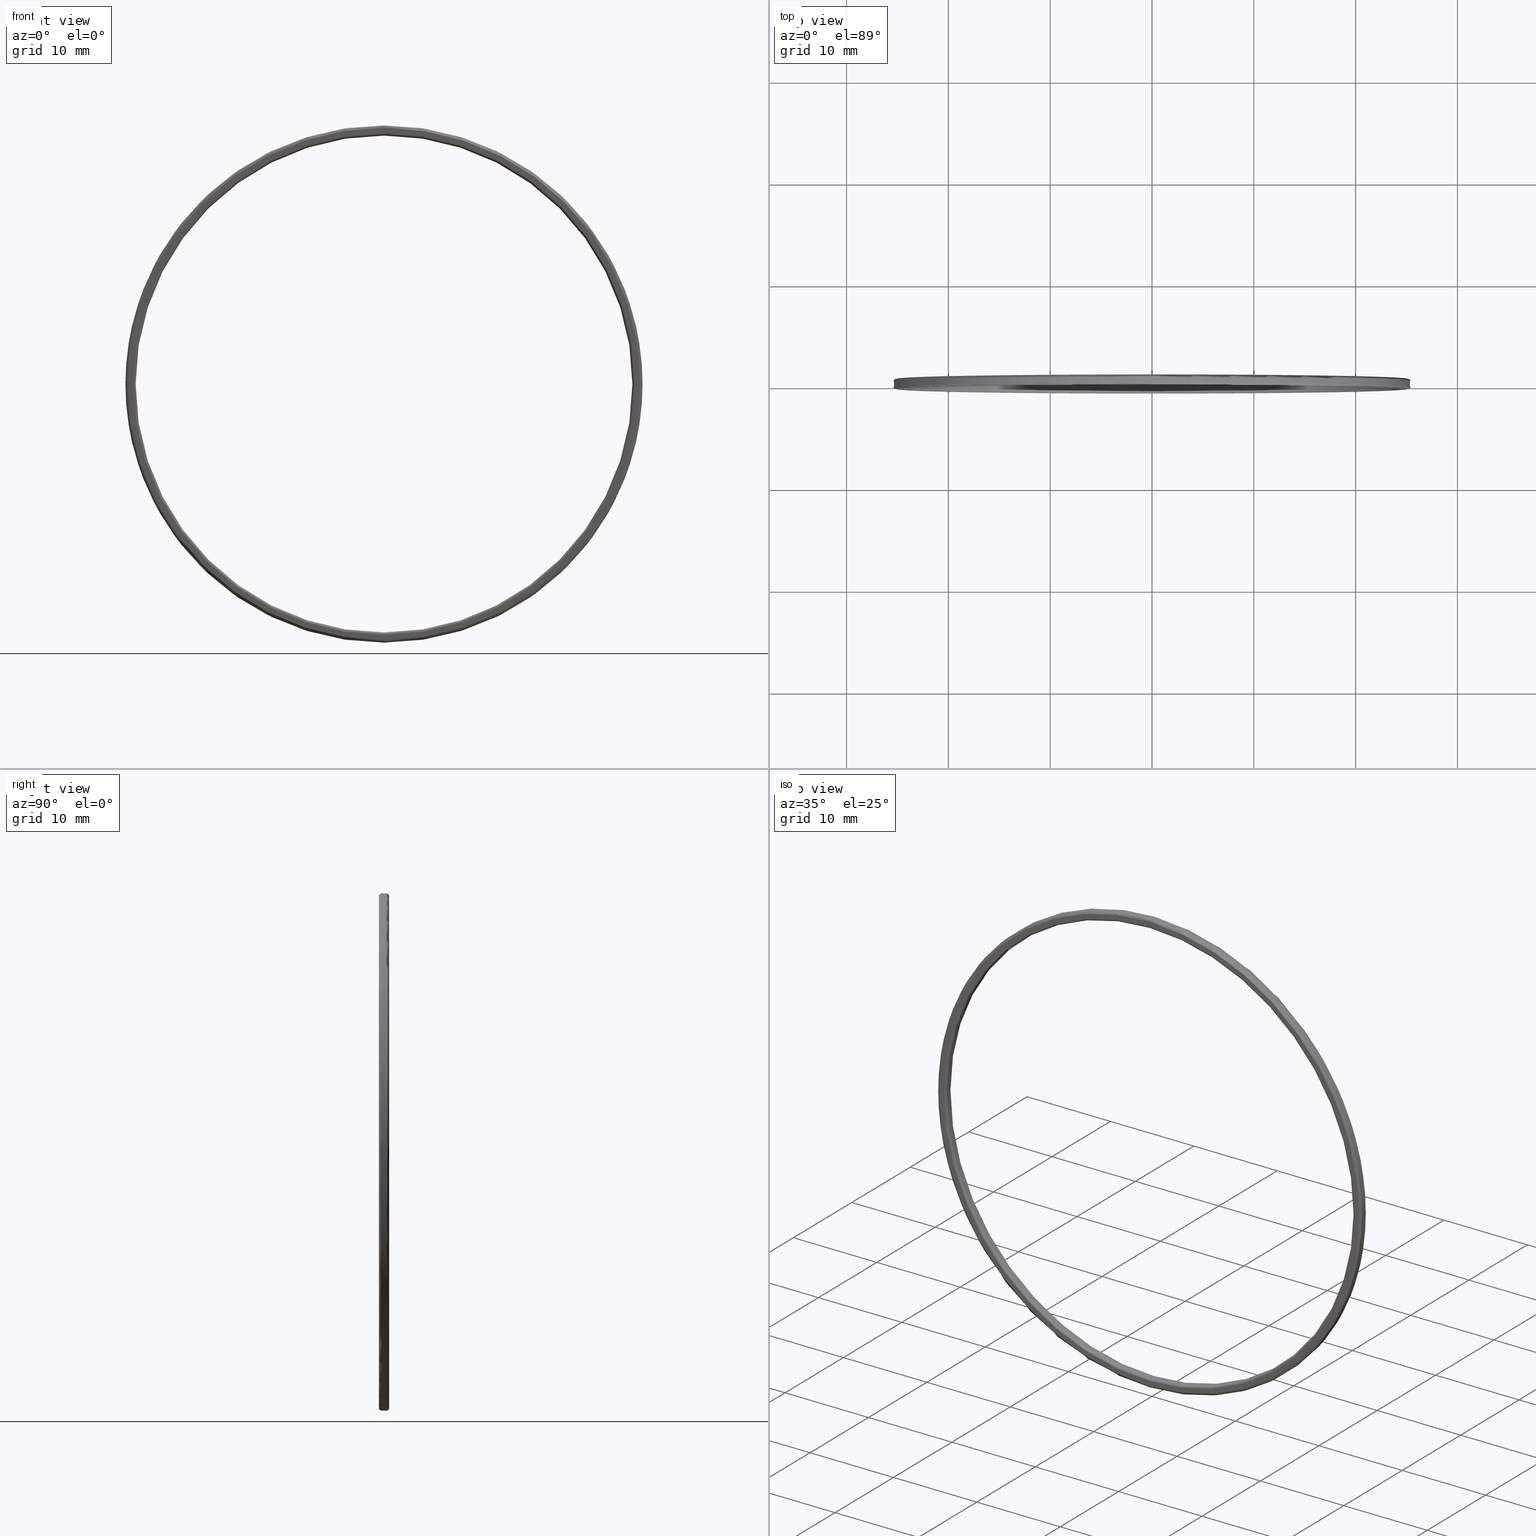
[diagram: canonical four-view strip — front | top / right | iso, engineering-drawing reading convention]
A machine part, canonical four-view strip (front | top / right | iso — engineering-drawing reading convention). The complete STEP part file that produces these views, byte-faithful:
ISO-10303-21;
HEADER;
FILE_DESCRIPTION (( 'STEP AP203' ),
    '1' );
FILE_NAME ('1.8.5.25_ZFK-D2.0_2.0Ӣ���ط�����Ȧ.STEP',
    '2021-07-10T05:48:40',
    ( 'China' ),
    ( 'Home' ),
    'SwSTEP 2.0',
    'SolidWorks 2018',
    '' );
FILE_SCHEMA (( 'CONFIG_CONTROL_DESIGN' ));
ENDSEC;

DATA;
#1 = ORIENTED_EDGE ( 'NONE', *, *, #332, .F. ) ;
#2 = ORIENTED_EDGE ( 'NONE', *, *, #5, .T. ) ;
#3 = CARTESIAN_POINT ( 'NONE',  ( 0.0000000000000000000, 0.4999999999999978351, 0.0000000000000000000 ) ) ;
#4 = APPROVAL_ROLE ( '' ) ;
#5 = EDGE_CURVE ( 'NONE', #395, #457, #37, .T. ) ;
#6 = FACE_OUTER_BOUND ( 'NONE', #145, .T. ) ;
#7 = PERSON_AND_ORGANIZATION ( #227, #315 ) ;
#8 = EDGE_CURVE ( 'NONE', #77, #326, #95, .T. ) ;
#9 = CARTESIAN_POINT ( 'NONE',  ( 0.0000000000000000000, 4.847222222222231203, 0.0000000000000000000 ) ) ;
#10 = CARTESIAN_POINT ( 'NONE',  ( 3.018754359898225504E-15, -0.2500000000000019429, -24.64999999999999858 ) ) ;
#11 = ADVANCED_FACE ( 'NONE', ( #135, #398 ), #322, .F. ) ;
#12 = VERTEX_POINT ( 'NONE', #290 ) ;
#13 = DIRECTION ( 'NONE',  ( 0.0000000000000000000, -1.000000000000000000, 0.0000000000000000000 ) ) ;
#14 = DIRECTION ( 'NONE',  ( 0.0000000000000000000, 0.0000000000000000000, 1.000000000000000000 ) ) ;
#15 = CARTESIAN_POINT ( 'NONE',  ( 0.0000000000000000000, -0.2500000000000019429, 0.0000000000000000000 ) ) ;
#16 = EDGE_CURVE ( 'NONE', #77, #60, #114, .T. ) ;
#17 = PLANE ( 'NONE',  #72 ) ;
#18 = CARTESIAN_POINT ( 'NONE',  ( 0.0000000000000000000, -0.5000000000000022204, 0.0000000000000000000 ) ) ;
#19 = CARTESIAN_POINT ( 'NONE',  ( 0.0000000000000000000, 0.0000000000000000000, 0.0000000000000000000 ) ) ;
#20 = CIRCLE ( 'NONE', #240, 25.14999999999999858 ) ;
#21 = CIRCLE ( 'NONE', #74, 0.2500000000000002220 ) ;
#22 = DIRECTION ( 'NONE',  ( 0.0000000000000000000, -1.000000000000000000, 0.0000000000000000000 ) ) ;
#23 = LINE ( 'NONE', #61, #344 ) ;
#24 = EDGE_CURVE ( 'NONE', #415, #122, #406, .T. ) ;
#25 = CARTESIAN_POINT ( 'NONE',  ( 0.0000000000000000000, 4.847222222222231203, 0.0000000000000000000 ) ) ;
#26 = DIRECTION ( 'NONE',  ( 0.0000000000000000000, 0.0000000000000000000, 1.000000000000000000 ) ) ;
#27 = FACE_OUTER_BOUND ( 'NONE', #272, .T. ) ;
#28 = AXIS2_PLACEMENT_3D ( 'NONE', #198, #307, #384 ) ;
#29 = CARTESIAN_POINT ( 'NONE',  ( 0.0000000000000000000, -0.2500000000000019429, 0.0000000000000000000 ) ) ;
#30 = EDGE_LOOP ( 'NONE', ( #405, #73 ) ) ;
#31 = EDGE_CURVE ( 'NONE', #124, #78, #305, .T. ) ;
#32 = CARTESIAN_POINT ( 'NONE',  ( 3.018754359898225504E-15, 0.4999999999999977240, 24.64999999999999858 ) ) ;
#33 = COORDINATED_UNIVERSAL_TIME_OFFSET ( 8, 0, .AHEAD. ) ;
#34 = EDGE_CURVE ( 'NONE', #457, #415, #23, .T. ) ;
#35 = TOROIDAL_SURFACE ( 'NONE', #192, 25.14999999999999858, 0.2500000000000000000 ) ;
#36 = CIRCLE ( 'NONE', #397, 25.14999999999999858 ) ;
#37 = CIRCLE ( 'NONE', #370, 24.39999999999999858 ) ;
#38 = DIRECTION ( 'NONE',  ( 1.000000000000000000, 0.0000000000000000000, 1.224646799147353207E-16 ) ) ;
#39 = DIRECTION ( 'NONE',  ( -0.0000000000000000000, 1.000000000000000000, -0.0000000000000000000 ) ) ;
#40 = EDGE_CURVE ( 'NONE', #435, #252, #283, .T. ) ;
#41 = APPROVAL_PERSON_ORGANIZATION ( #336, #67, #210 ) ;
#42 = CYLINDRICAL_SURFACE ( 'NONE', #28, 24.39999999999999858 ) ;
#43 = DIRECTION ( 'NONE',  ( 0.0000000000000000000, 0.0000000000000000000, 1.000000000000000000 ) ) ;
#44 = ORIENTED_EDGE ( 'NONE', *, *, #5, .F. ) ;
#45 = ORIENTED_EDGE ( 'NONE', *, *, #84, .F. ) ;
#46 = AXIS2_PLACEMENT_3D ( 'NONE', #357, #120, #413 ) ;
#47 = PERSON_AND_ORGANIZATION ( #227, #315 ) ;
#48 = CARTESIAN_POINT ( 'NONE',  ( 24.39999999999999858, -0.5000000000000022204, 0.0000000000000000000 ) ) ;
#49 = DIRECTION ( 'NONE',  ( -0.0000000000000000000, 1.000000000000000000, -0.0000000000000000000 ) ) ;
#50 = ORIENTED_EDGE ( 'NONE', *, *, #286, .F. ) ;
#51 = CARTESIAN_POINT ( 'NONE',  ( 0.0000000000000000000, -0.2500000000000019429, 0.0000000000000000000 ) ) ;
#52 = ORIENTED_EDGE ( 'NONE', *, *, #16, .F. ) ;
#53 = APPROVAL_DATE_TIME ( #190, #244 ) ;
#54 =( GEOMETRIC_REPRESENTATION_CONTEXT ( 3 ) GLOBAL_UNCERTAINTY_ASSIGNED_CONTEXT ( ( #71 ) ) GLOBAL_UNIT_ASSIGNED_CONTEXT ( ( #448, #317, #165 ) ) REPRESENTATION_CONTEXT ( 'NONE', 'WORKASPACE' ) );
#55 = CARTESIAN_POINT ( 'NONE',  ( 2.988138189919541717E-15, -0.2500000000000019429, -24.39999999999999858 ) ) ;
#56 = LOCAL_TIME ( 13, 48, 40.00000000000000000, #76 ) ;
#57 = DIRECTION ( 'NONE',  ( 0.0000000000000000000, 0.0000000000000000000, 1.000000000000000000 ) ) ;
#58 = EDGE_CURVE ( 'NONE', #124, #142, #36, .T. ) ;
#59 = DIRECTION ( 'NONE',  ( 0.0000000000000000000, 0.0000000000000000000, 1.000000000000000000 ) ) ;
#60 = VERTEX_POINT ( 'NONE', #215 ) ;
#61 = CARTESIAN_POINT ( 'NONE',  ( 0.0000000000000000000, 4.847222222222231203, 24.39999999999999858 ) ) ;
#62 = SECURITY_CLASSIFICATION_LEVEL ( 'unclassified' ) ;
#63 = DIRECTION ( 'NONE',  ( 0.0000000000000000000, -1.000000000000000000, 0.0000000000000000000 ) ) ;
#64 = CARTESIAN_POINT ( 'NONE',  ( 3.110602869834276865E-15, 4.847222222222231203, -25.39999999999999858 ) ) ;
#65 = ORIENTED_EDGE ( 'NONE', *, *, #31, .T. ) ;
#66 = CIRCLE ( 'NONE', #128, 25.39999999999999858 ) ;
#67 = APPROVAL ( #175, 'δָ��' ) ;
#68 = ORIENTED_EDGE ( 'NONE', *, *, #58, .F. ) ;
#69 = ORIENTED_EDGE ( 'NONE', *, *, #339, .F. ) ;
#70 = PERSON_AND_ORGANIZATION ( #227, #315 ) ;
#71 = UNCERTAINTY_MEASURE_WITH_UNIT (LENGTH_MEASURE( 1.000000000000000082E-05 ), #448, 'distance_accuracy_value', 'NONE');
#72 = AXIS2_PLACEMENT_3D ( 'NONE', #48, #277, #416 ) ;
#73 = ORIENTED_EDGE ( 'NONE', *, *, #157, .T. ) ;
#74 = AXIS2_PLACEMENT_3D ( 'NONE', #10, #38, #188 ) ;
#75 = CIRCLE ( 'NONE', #268, 24.39999999999999858 ) ;
#76 = COORDINATED_UNIVERSAL_TIME_OFFSET ( 8, 0, .AHEAD. ) ;
#77 = VERTEX_POINT ( 'NONE', #325 ) ;
#78 = VERTEX_POINT ( 'NONE', #256 ) ;
#79 = CC_DESIGN_APPROVAL ( #67, ( #131 ) ) ;
#80 = APPROVAL_PERSON_ORGANIZATION ( #7, #153, #245 ) ;
#81 = DIRECTION ( 'NONE',  ( -0.0000000000000000000, 1.000000000000000000, -0.0000000000000000000 ) ) ;
#82 = ORIENTED_EDGE ( 'NONE', *, *, #117, .F. ) ;
#83 = CARTESIAN_POINT ( 'NONE',  ( 0.0000000000000000000, -0.5000000000000022204, 25.14999999999999858 ) ) ;
#84 = EDGE_CURVE ( 'NONE', #435, #77, #276, .T. ) ;
#85 = DATE_AND_TIME ( #182, #402 ) ;
#86 = CARTESIAN_POINT ( 'NONE',  ( 2.988138189919541717E-15, 4.847222222222231203, -24.39999999999999858 ) ) ;
#87 = ORIENTED_EDGE ( 'NONE', *, *, #301, .F. ) ;
#88 = DIRECTION ( 'NONE',  ( 0.0000000000000000000, 0.0000000000000000000, 1.000000000000000000 ) ) ;
#89 = ORIENTED_EDGE ( 'NONE', *, *, #233, .F. ) ;
#90 = PERSON_AND_ORGANIZATION ( #227, #315 ) ;
#91 = DIRECTION ( 'NONE',  ( 0.0000000000000000000, -1.000000000000000000, 0.0000000000000000000 ) ) ;
#92 = DIRECTION ( 'NONE',  ( 1.000000000000000000, 0.0000000000000000000, 0.0000000000000000000 ) ) ;
#93 = AXIS2_PLACEMENT_3D ( 'NONE', #316, #390, #207 ) ;
#94 = FACE_OUTER_BOUND ( 'NONE', #118, .T. ) ;
#95 = LINE ( 'NONE', #64, #257 ) ;
#96 = DIRECTION ( 'NONE',  ( 0.0000000000000000000, 0.0000000000000000000, -1.000000000000000000 ) ) ;
#97 = CARTESIAN_POINT ( 'NONE',  ( 3.095294784844934972E-15, -0.5000000000000022204, -25.14999999999999858 ) ) ;
#98 = ORIENTED_EDGE ( 'NONE', *, *, #184, .T. ) ;
#99 = DIRECTION ( 'NONE',  ( -0.0000000000000000000, 1.000000000000000000, -0.0000000000000000000 ) ) ;
#100 = CALENDAR_DATE ( 2021, 10, 7 ) ;
#101 = AXIS2_PLACEMENT_3D ( 'NONE', #176, #107, #287 ) ;
#102 = DIRECTION ( 'NONE',  ( 0.0000000000000000000, -0.0000000000000000000, -1.000000000000000000 ) ) ;
#103 = EDGE_LOOP ( 'NONE', ( #45, #89, #221, #52 ) ) ;
#104 = DIRECTION ( 'NONE',  ( -1.224646799147349509E-16, 0.0000000000000000000, -1.000000000000000000 ) ) ;
#105 = ORIENTED_EDGE ( 'NONE', *, *, #34, .F. ) ;
#106 = ORIENTED_EDGE ( 'NONE', *, *, #258, .F. ) ;
#107 = DIRECTION ( 'NONE',  ( 1.000000000000000000, 0.0000000000000000000, -1.224646799147353207E-16 ) ) ;
#108 = PERSON_AND_ORGANIZATION_ROLE ( 'design_supplier' ) ;
#109 = TOROIDAL_SURFACE ( 'NONE', #200, 25.14999999999999858, 0.2500000000000000000 ) ;
#110 = CC_DESIGN_PERSON_AND_ORGANIZATION_ASSIGNMENT ( #239, #108, ( #169 ) ) ;
#111 = PERSON_AND_ORGANIZATION ( #227, #315 ) ;
#112 = AXIS2_PLACEMENT_3D ( 'NONE', #140, #63, #102 ) ;
#113 = CIRCLE ( 'NONE', #93, 24.39999999999999858 ) ;
#114 = CIRCLE ( 'NONE', #279, 25.39999999999999858 ) ;
#115 = ORIENTED_EDGE ( 'NONE', *, *, #58, .T. ) ;
#116 = DIRECTION ( 'NONE',  ( 0.0000000000000000000, 0.0000000000000000000, -1.000000000000000000 ) ) ;
#117 = EDGE_CURVE ( 'NONE', #122, #12, #359, .T. ) ;
#118 = EDGE_LOOP ( 'NONE', ( #425, #436, #347, #105 ) ) ;
#119 = APPROVAL_DATE_TIME ( #85, #67 ) ;
#120 = DIRECTION ( 'NONE',  ( 0.0000000000000000000, -1.000000000000000000, 0.0000000000000000000 ) ) ;
#121 = DIRECTION ( 'NONE',  ( 0.0000000000000000000, -1.000000000000000000, 0.0000000000000000000 ) ) ;
#122 = VERTEX_POINT ( 'NONE', #32 ) ;
#123 = AXIS2_PLACEMENT_3D ( 'NONE', #446, #235, #162 ) ;
#124 = VERTEX_POINT ( 'NONE', #254 ) ;
#125 = DIRECTION ( 'NONE',  ( 0.0000000000000000000, -1.000000000000000000, 0.0000000000000000000 ) ) ;
#126 = ORIENTED_EDGE ( 'NONE', *, *, #34, .T. ) ;
#127 = DIRECTION ( 'NONE',  ( -0.0000000000000000000, 1.000000000000000000, -0.0000000000000000000 ) ) ;
#128 = AXIS2_PLACEMENT_3D ( 'NONE', #432, #267, #342 ) ;
#129 = TOROIDAL_SURFACE ( 'NONE', #320, 24.64999999999999858, 0.2500000000000000000 ) ;
#130 = CARTESIAN_POINT ( 'NONE',  ( 0.0000000000000000000, 0.4999999999999978351, 0.0000000000000000000 ) ) ;
#131 = PRODUCT_DEFINITION ( 'δ֪', '', #169, #183 ) ;
#132 = DIRECTION ( 'NONE',  ( 0.0000000000000000000, -1.000000000000000000, 0.0000000000000000000 ) ) ;
#133 = AXIS2_PLACEMENT_3D ( 'NONE', #409, #193, #116 ) ;
#134 = CIRCLE ( 'NONE', #225, 25.39999999999999858 ) ;
#135 = FACE_BOUND ( 'NONE', #366, .T. ) ;
#136 = CARTESIAN_POINT ( 'NONE',  ( 0.0000000000000000000, 0.2499999999999976130, 0.0000000000000000000 ) ) ;
#137 = EDGE_CURVE ( 'NONE', #60, #77, #66, .T. ) ;
#138 = CARTESIAN_POINT ( 'NONE',  ( 0.0000000000000000000, -0.5000000000000022204, 0.0000000000000000000 ) ) ;
#139 = ORIENTED_EDGE ( 'NONE', *, *, #143, .T. ) ;
#140 = CARTESIAN_POINT ( 'NONE',  ( 24.39999999999999858, 0.4999999999999978351, 0.0000000000000000000 ) ) ;
#141 = PERSON_AND_ORGANIZATION_ROLE ( 'classification_officer' ) ;
#142 = VERTEX_POINT ( 'NONE', #251 ) ;
#143 = EDGE_CURVE ( 'NONE', #78, #326, #299, .T. ) ;
#144 = LOCAL_TIME ( 13, 48, 40.00000000000000000, #280 ) ;
#145 = EDGE_LOOP ( 'NONE', ( #345, #399, #389, #152 ) ) ;
#146 = AXIS2_PLACEMENT_3D ( 'NONE', #130, #49, #96 ) ;
#147 = ADVANCED_FACE ( 'NONE', ( #174 ), #375, .T. ) ;
#148 = VECTOR ( 'NONE', #383, 1000.000000000000000 ) ;
#149 = CARTESIAN_POINT ( 'NONE',  ( 0.0000000000000000000, -0.5000000000000022204, 0.0000000000000000000 ) ) ;
#150 = VECTOR ( 'NONE', #260, 1000.000000000000000 ) ;
#151 = AXIS2_PLACEMENT_3D ( 'NONE', #155, #160, #312 ) ;
#152 = ORIENTED_EDGE ( 'NONE', *, *, #171, .F. ) ;
#153 = APPROVAL ( #212, 'δָ��' ) ;
#154 = APPROVAL_DATE_TIME ( #353, #153 ) ;
#155 = CARTESIAN_POINT ( 'NONE',  ( 0.0000000000000000000, 4.847222222222231203, 0.0000000000000000000 ) ) ;
#156 = AXIS2_PLACEMENT_3D ( 'NONE', #149, #39, #382 ) ;
#157 = EDGE_CURVE ( 'NONE', #430, #378, #330, .T. ) ;
#158 = ADVANCED_FACE ( 'NONE', ( #195 ), #129, .T. ) ;
#159 = DIRECTION ( 'NONE',  ( 0.0000000000000000000, 0.0000000000000000000, 1.000000000000000000 ) ) ;
#160 = DIRECTION ( 'NONE',  ( -0.0000000000000000000, 1.000000000000000000, -0.0000000000000000000 ) ) ;
#161 = TOROIDAL_SURFACE ( 'NONE', #376, 25.14999999999999858, 0.2500000000000000000 ) ;
#162 = DIRECTION ( 'NONE',  ( 0.0000000000000000000, 0.0000000000000000000, 1.000000000000000000 ) ) ;
#163 = EDGE_LOOP ( 'NONE', ( #433, #2, #126, #314 ) ) ;
#164 = APPROVAL_PERSON_ORGANIZATION ( #47, #244, #4 ) ;
#165 =( NAMED_UNIT ( * ) SI_UNIT ( $, .STERADIAN. ) SOLID_ANGLE_UNIT ( ) );
#166 = AXIS2_PLACEMENT_3D ( 'NONE', #321, #202, #281 ) ;
#167 = DIRECTION ( 'NONE',  ( 0.0000000000000000000, 0.0000000000000000000, -1.000000000000000000 ) ) ;
#168 = CARTESIAN_POINT ( 'NONE',  ( 0.0000000000000000000, -0.5000000000000021094, 24.64999999999999858 ) ) ;
#169 = PRODUCT_DEFINITION_FORMATION_WITH_SPECIFIED_SOURCE ( '�κ�', '', #354, .NOT_KNOWN. ) ;
#170 = CALENDAR_DATE ( 2021, 10, 7 ) ;
#171 = EDGE_CURVE ( 'NONE', #60, #78, #364, .T. ) ;
#172 = DIRECTION ( 'NONE',  ( 0.0000000000000000000, -1.000000000000000000, 0.0000000000000000000 ) ) ;
#173 = CIRCLE ( 'NONE', #351, 0.2500000000000002220 ) ;
#174 = FACE_OUTER_BOUND ( 'NONE', #246, .T. ) ;
#175 = APPROVAL_STATUS ( 'not_yet_approved' ) ;
#176 = CARTESIAN_POINT ( 'NONE',  ( 3.018754359898225504E-15, 0.2499999999999976130, 24.64999999999999858 ) ) ;
#177 = CARTESIAN_POINT ( 'NONE',  ( 0.0000000000000000000, 0.4999999999999978351, 0.0000000000000000000 ) ) ;
#178 = CC_DESIGN_APPROVAL ( #153, ( #337 ) ) ;
#179 = ORIENTED_EDGE ( 'NONE', *, *, #40, .T. ) ;
#180 = AXIS2_PLACEMENT_3D ( 'NONE', #229, #270, #43 ) ;
#181 = LOCAL_TIME ( 13, 48, 40.00000000000000000, #450 ) ;
#182 = CALENDAR_DATE ( 2021, 10, 7 ) ;
#183 = DESIGN_CONTEXT ( 'detailed design', #423, 'design' ) ;
#184 = EDGE_CURVE ( 'NONE', #395, #430, #21, .T. ) ;
#185 = DIRECTION ( 'NONE',  ( -0.0000000000000000000, 1.000000000000000000, -0.0000000000000000000 ) ) ;
#186 = FACE_OUTER_BOUND ( 'NONE', #373, .T. ) ;
#187 = FACE_OUTER_BOUND ( 'NONE', #334, .T. ) ;
#188 = DIRECTION ( 'NONE',  ( 1.224646799147349509E-16, 0.0000000000000000000, -1.000000000000000000 ) ) ;
#189 = DATE_AND_TIME ( #170, #144 ) ;
#190 = DATE_AND_TIME ( #438, #379 ) ;
#191 = ADVANCED_FACE ( 'NONE', ( #187 ), #242, .T. ) ;
#192 = AXIS2_PLACEMENT_3D ( 'NONE', #51, #99, #26 ) ;
#193 = DIRECTION ( 'NONE',  ( 0.0000000000000000000, -1.000000000000000000, 0.0000000000000000000 ) ) ;
#194 = ADVANCED_FACE ( 'NONE', ( #6 ), #216, .T. ) ;
#195 = FACE_OUTER_BOUND ( 'NONE', #232, .T. ) ;
#196 = AXIS2_PLACEMENT_3D ( 'NONE', #25, #284, #57 ) ;
#197 = ORIENTED_EDGE ( 'NONE', *, *, #286, .T. ) ;
#198 = CARTESIAN_POINT ( 'NONE',  ( 0.0000000000000000000, 4.847222222222231203, 0.0000000000000000000 ) ) ;
#199 = ORIENTED_EDGE ( 'NONE', *, *, #310, .T. ) ;
#200 = AXIS2_PLACEMENT_3D ( 'NONE', #15, #81, #309 ) ;
#201 = ORIENTED_EDGE ( 'NONE', *, *, #8, .F. ) ;
#202 = DIRECTION ( 'NONE',  ( -0.0000000000000000000, 1.000000000000000000, -0.0000000000000000000 ) ) ;
#203 = AXIS2_PLACEMENT_3D ( 'NONE', #355, #121, #443 ) ;
#204 = CIRCLE ( 'NONE', #180, 0.2500000000000002220 ) ;
#205 = DIRECTION ( 'NONE',  ( -1.000000000000000000, -0.0000000000000000000, -0.0000000000000000000 ) ) ;
#206 = DIRECTION ( 'NONE',  ( 0.0000000000000000000, 0.0000000000000000000, 1.000000000000000000 ) ) ;
#207 = DIRECTION ( 'NONE',  ( 0.0000000000000000000, 0.0000000000000000000, -1.000000000000000000 ) ) ;
#208 = AXIS2_PLACEMENT_3D ( 'NONE', #452, #205, #206 ) ;
#209 = CIRCLE ( 'NONE', #208, 0.2500000000000002220 ) ;
#210 = APPROVAL_ROLE ( '' ) ;
#211 = ORIENTED_EDGE ( 'NONE', *, *, #31, .F. ) ;
#212 = APPROVAL_STATUS ( 'not_yet_approved' ) ;
#213 = ORIENTED_EDGE ( 'NONE', *, *, #453, .F. ) ;
#214 = CC_DESIGN_APPROVAL ( #244, ( #169 ) ) ;
#215 = CARTESIAN_POINT ( 'NONE',  ( 0.0000000000000000000, -0.2500000000000019429, 25.39999999999999858 ) ) ;
#216 = CYLINDRICAL_SURFACE ( 'NONE', #151, 25.39999999999999858 ) ;
#217 = DATE_TIME_ROLE ( 'creation_date' ) ;
#218 = AXIS2_PLACEMENT_3D ( 'NONE', #434, #13, #224 ) ;
#219 = VERTEX_POINT ( 'NONE', #352 ) ;
#220 = CIRCLE ( 'NONE', #146, 25.14999999999999858 ) ;
#221 = ORIENTED_EDGE ( 'NONE', *, *, #453, .T. ) ;
#222 = ADVANCED_FACE ( 'NONE', ( #94 ), #42, .F. ) ;
#223 = AXIS2_PLACEMENT_3D ( 'NONE', #269, #127, #88 ) ;
#224 = DIRECTION ( 'NONE',  ( 0.0000000000000000000, 0.0000000000000000000, -1.000000000000000000 ) ) ;
#225 = AXIS2_PLACEMENT_3D ( 'NONE', #323, #91, #167 ) ;
#226 = ADVANCED_FACE ( 'NONE', ( #343, #27 ), #17, .F. ) ;
#227 = PERSON ( 'δָ��', 'δָ��', 'δָ��', ('δָ��'), ('δָ��'), ('δָ��') ) ;
#228 = ORIENTED_EDGE ( 'NONE', *, *, #301, .T. ) ;
#229 = CARTESIAN_POINT ( 'NONE',  ( 0.0000000000000000000, 0.2499999999999976130, -25.14999999999999858 ) ) ;
#230 = TOROIDAL_SURFACE ( 'NONE', #203, 24.64999999999999858, 0.2500000000000000000 ) ;
#231 = EDGE_CURVE ( 'NONE', #457, #395, #311, .T. ) ;
#232 = EDGE_LOOP ( 'NONE', ( #44, #98, #372, #50 ) ) ;
#233 = EDGE_CURVE ( 'NONE', #252, #435, #20, .T. ) ;
#234 = ORIENTED_EDGE ( 'NONE', *, *, #24, .T. ) ;
#235 = DIRECTION ( 'NONE',  ( -1.000000000000000000, 0.0000000000000000000, 0.0000000000000000000 ) ) ;
#236 = ORIENTED_EDGE ( 'NONE', *, *, #40, .F. ) ;
#237 = CC_DESIGN_PERSON_AND_ORGANIZATION_ASSIGNMENT ( #444, #291, ( #354 ) ) ;
#238 = CARTESIAN_POINT ( 'NONE',  ( 3.018754359898225504E-15, -0.5000000000000021094, -24.64999999999999858 ) ) ;
#239 = PERSON_AND_ORGANIZATION ( #227, #315 ) ;
#240 = AXIS2_PLACEMENT_3D ( 'NONE', #18, #388, #159 ) ;
#241 = DIRECTION ( 'NONE',  ( -0.0000000000000000000, 1.000000000000000000, -0.0000000000000000000 ) ) ;
#242 = TOROIDAL_SURFACE ( 'NONE', #218, 25.14999999999999858, 0.2500000000000000000 ) ;
#243 = ORIENTED_EDGE ( 'NONE', *, *, #171, .T. ) ;
#244 = APPROVAL ( #400, 'δָ��' ) ;
#245 = APPROVAL_ROLE ( '' ) ;
#246 = EDGE_LOOP ( 'NONE', ( #201, #285, #243, #139 ) ) ;
#247 = DATE_AND_TIME ( #335, #181 ) ;
#248 = DIRECTION ( 'NONE',  ( 0.0000000000000000000, 0.0000000000000000000, 1.000000000000000000 ) ) ;
#249 = EDGE_CURVE ( 'NONE', #219, #415, #75, .T. ) ;
#250 = CIRCLE ( 'NONE', #46, 24.64999999999999858 ) ;
#251 = CARTESIAN_POINT ( 'NONE',  ( 0.0000000000000000000, 0.4999999999999978351, -25.14999999999999858 ) ) ;
#252 = VERTEX_POINT ( 'NONE', #83 ) ;
#253 = ORIENTED_EDGE ( 'NONE', *, *, #361, .F. ) ;
#254 = CARTESIAN_POINT ( 'NONE',  ( 3.095294784844934972E-15, 0.4999999999999978351, 25.14999999999999858 ) ) ;
#255 = CC_DESIGN_DATE_AND_TIME_ASSIGNMENT ( #189, #371, ( #337 ) ) ;
#256 = CARTESIAN_POINT ( 'NONE',  ( 0.0000000000000000000, 0.2499999999999976130, 25.39999999999999858 ) ) ;
#257 = VECTOR ( 'NONE', #294, 1000.000000000000000 ) ;
#258 = EDGE_CURVE ( 'NONE', #12, #122, #250, .T. ) ;
#259 = EDGE_CURVE ( 'NONE', #395, #219, #303, .T. ) ;
#260 = DIRECTION ( 'NONE',  ( -0.0000000000000000000, 1.000000000000000000, -0.0000000000000000000 ) ) ;
#261 = CYLINDRICAL_SURFACE ( 'NONE', #196, 24.39999999999999858 ) ;
#262 = CARTESIAN_POINT ( 'NONE',  ( 0.0000000000000000000, 4.847222222222231203, 25.39999999999999858 ) ) ;
#263 = ORIENTED_EDGE ( 'NONE', *, *, #310, .F. ) ;
#264 = ORIENTED_EDGE ( 'NONE', *, *, #231, .F. ) ;
#265 = CC_DESIGN_PERSON_AND_ORGANIZATION_ASSIGNMENT ( #90, #424, ( #169 ) ) ;
#266 = ORIENTED_EDGE ( 'NONE', *, *, #117, .T. ) ;
#267 = DIRECTION ( 'NONE',  ( -0.0000000000000000000, 1.000000000000000000, -0.0000000000000000000 ) ) ;
#268 = AXIS2_PLACEMENT_3D ( 'NONE', #447, #313, #411 ) ;
#269 = CARTESIAN_POINT ( 'NONE',  ( 0.0000000000000000000, -0.5000000000000022204, 0.0000000000000000000 ) ) ;
#270 = DIRECTION ( 'NONE',  ( -1.000000000000000000, -0.0000000000000000000, -0.0000000000000000000 ) ) ;
#271 = EDGE_CURVE ( 'NONE', #378, #430, #329, .T. ) ;
#272 = EDGE_LOOP ( 'NONE', ( #369, #179 ) ) ;
#273 = MANIFOLD_SOLID_BREP ( 'Բ��1', #293 ) ;
#274 = AXIS2_PLACEMENT_3D ( 'NONE', #19, #278, #92 ) ;
#275 = CARTESIAN_POINT ( 'NONE',  ( 3.110602869834276865E-15, 0.2499999999999976130, -25.39999999999999858 ) ) ;
#276 = CIRCLE ( 'NONE', #419, 0.2500000000000002220 ) ;
#277 = DIRECTION ( 'NONE',  ( -0.0000000000000000000, 1.000000000000000000, 0.0000000000000000000 ) ) ;
#278 = DIRECTION ( 'NONE',  ( 0.0000000000000000000, 0.0000000000000000000, 1.000000000000000000 ) ) ;
#279 = AXIS2_PLACEMENT_3D ( 'NONE', #327, #241, #368 ) ;
#280 = COORDINATED_UNIVERSAL_TIME_OFFSET ( 8, 0, .AHEAD. ) ;
#281 = DIRECTION ( 'NONE',  ( 0.0000000000000000000, 0.0000000000000000000, 1.000000000000000000 ) ) ;
#282 = DIRECTION ( 'NONE',  ( 0.0000000000000000000, 0.0000000000000000000, -1.000000000000000000 ) ) ;
#283 = CIRCLE ( 'NONE', #404, 25.14999999999999858 ) ;
#284 = DIRECTION ( 'NONE',  ( -0.0000000000000000000, 1.000000000000000000, -0.0000000000000000000 ) ) ;
#285 = ORIENTED_EDGE ( 'NONE', *, *, #16, .T. ) ;
#286 = EDGE_CURVE ( 'NONE', #457, #378, #403, .T. ) ;
#287 = DIRECTION ( 'NONE',  ( -1.224646799147349509E-16, 0.0000000000000000000, -1.000000000000000000 ) ) ;
#288 = APPLICATION_PROTOCOL_DEFINITION ( 'international standard', 'config_control_design', 1994, #423 ) ;
#289 = FACE_OUTER_BOUND ( 'NONE', #377, .T. ) ;
#290 = CARTESIAN_POINT ( 'NONE',  ( 0.0000000000000000000, 0.4999999999999977240, -24.64999999999999858 ) ) ;
#291 = PERSON_AND_ORGANIZATION_ROLE ( 'design_owner' ) ;
#292 = ORIENTED_EDGE ( 'NONE', *, *, #24, .F. ) ;
#293 = CLOSED_SHELL ( 'NONE', ( #381, #441, #302, #158, #222, #194, #147, #226, #341, #11, #348, #407, #308, #191 ) ) ;
#294 = DIRECTION ( 'NONE',  ( -0.0000000000000000000, 1.000000000000000000, -0.0000000000000000000 ) ) ;
#295 = AXIS2_PLACEMENT_3D ( 'NONE', #136, #22, #360 ) ;
#296 = CARTESIAN_POINT ( 'NONE',  ( 3.079986699855593078E-15, -0.2500000000000019429, -25.14999999999999858 ) ) ;
#297 = CC_DESIGN_PERSON_AND_ORGANIZATION_ASSIGNMENT ( #70, #141, ( #337 ) ) ;
#298 = FACE_OUTER_BOUND ( 'NONE', #449, .T. ) ;
#299 = CIRCLE ( 'NONE', #133, 25.39999999999999858 ) ;
#300 = CC_DESIGN_DATE_AND_TIME_ASSIGNMENT ( #247, #217, ( #131 ) ) ;
#301 = EDGE_CURVE ( 'NONE', #142, #326, #204, .T. ) ;
#302 = ADVANCED_FACE ( 'NONE', ( #298 ), #109, .T. ) ;
#303 = LINE ( 'NONE', #86, #148 ) ;
#304 = DIRECTION ( 'NONE',  ( 0.0000000000000000000, 0.0000000000000000000, 1.000000000000000000 ) ) ;
#305 = CIRCLE ( 'NONE', #385, 0.2500000000000002220 ) ;
#306 = ORIENTED_EDGE ( 'NONE', *, *, #332, .T. ) ;
#307 = DIRECTION ( 'NONE',  ( -0.0000000000000000000, 1.000000000000000000, -0.0000000000000000000 ) ) ;
#308 = ADVANCED_FACE ( 'NONE', ( #391 ), #230, .T. ) ;
#309 = DIRECTION ( 'NONE',  ( 0.0000000000000000000, 0.0000000000000000000, 1.000000000000000000 ) ) ;
#310 = EDGE_CURVE ( 'NONE', #219, #12, #209, .T. ) ;
#311 = CIRCLE ( 'NONE', #445, 24.39999999999999858 ) ;
#312 = DIRECTION ( 'NONE',  ( 0.0000000000000000000, 0.0000000000000000000, 1.000000000000000000 ) ) ;
#313 = DIRECTION ( 'NONE',  ( -0.0000000000000000000, 1.000000000000000000, -0.0000000000000000000 ) ) ;
#314 = ORIENTED_EDGE ( 'NONE', *, *, #361, .T. ) ;
#315 = ORGANIZATION ( 'δָ��', 'δָ��', '' ) ;
#316 = CARTESIAN_POINT ( 'NONE',  ( 0.0000000000000000000, 0.2499999999999976130, 0.0000000000000000000 ) ) ;
#317 =( NAMED_UNIT ( * ) PLANE_ANGLE_UNIT ( ) SI_UNIT ( $, .RADIAN. ) );
#318 = APPLICATION_CONTEXT ( 'configuration controlled 3d designs of mechanical parts and assemblies' ) ;
#319 = ORIENTED_EDGE ( 'NONE', *, *, #184, .F. ) ;
#320 = AXIS2_PLACEMENT_3D ( 'NONE', #346, #439, #14 ) ;
#321 = CARTESIAN_POINT ( 'NONE',  ( 0.0000000000000000000, -0.2500000000000019429, 0.0000000000000000000 ) ) ;
#322 = PLANE ( 'NONE',  #112 ) ;
#323 = CARTESIAN_POINT ( 'NONE',  ( 0.0000000000000000000, 0.2499999999999976130, 0.0000000000000000000 ) ) ;
#324 = EDGE_LOOP ( 'NONE', ( #319, #264, #197, #396 ) ) ;
#325 = CARTESIAN_POINT ( 'NONE',  ( 3.110602869834276865E-15, -0.2500000000000019429, -25.39999999999999858 ) ) ;
#326 = VERTEX_POINT ( 'NONE', #275 ) ;
#327 = CARTESIAN_POINT ( 'NONE',  ( 0.0000000000000000000, -0.2500000000000019429, 0.0000000000000000000 ) ) ;
#328 = CARTESIAN_POINT ( 'NONE',  ( 3.079986699855593078E-15, 0.2499999999999976130, 25.14999999999999858 ) ) ;
#329 = CIRCLE ( 'NONE', #223, 24.64999999999999858 ) ;
#330 = CIRCLE ( 'NONE', #156, 24.64999999999999858 ) ;
#331 = PERSON_AND_ORGANIZATION_ROLE ( 'creator' ) ;
#332 = EDGE_CURVE ( 'NONE', #142, #124, #220, .T. ) ;
#333 = DIRECTION ( 'NONE',  ( 1.000000000000000000, 0.0000000000000000000, 1.224646799147353207E-16 ) ) ;
#334 = EDGE_LOOP ( 'NONE', ( #211, #1, #228, #442 ) ) ;
#335 = CALENDAR_DATE ( 2021, 10, 7 ) ;
#336 = PERSON_AND_ORGANIZATION ( #227, #315 ) ;
#337 = SECURITY_CLASSIFICATION ( '', '', #62 ) ;
#338 = TOROIDAL_SURFACE ( 'NONE', #166, 24.64999999999999858, 0.2500000000000000000 ) ;
#339 = EDGE_CURVE ( 'NONE', #326, #78, #134, .T. ) ;
#340 = ORIENTED_EDGE ( 'NONE', *, *, #84, .T. ) ;
#341 = ADVANCED_FACE ( 'NONE', ( #358 ), #261, .F. ) ;
#342 = DIRECTION ( 'NONE',  ( 0.0000000000000000000, 0.0000000000000000000, 1.000000000000000000 ) ) ;
#343 = FACE_BOUND ( 'NONE', #30, .T. ) ;
#344 = VECTOR ( 'NONE', #394, 1000.000000000000000 ) ;
#345 = ORIENTED_EDGE ( 'NONE', *, *, #137, .T. ) ;
#346 = CARTESIAN_POINT ( 'NONE',  ( 0.0000000000000000000, -0.2500000000000019429, 0.0000000000000000000 ) ) ;
#347 = ORIENTED_EDGE ( 'NONE', *, *, #249, .T. ) ;
#348 = ADVANCED_FACE ( 'NONE', ( #387 ), #338, .T. ) ;
#349 = DIRECTION ( 'NONE',  ( -0.0000000000000000000, 1.000000000000000000, -0.0000000000000000000 ) ) ;
#350 = ADVANCED_BREP_SHAPE_REPRESENTATION ( '1.8.5.25_ZFK-D2.0_2.0Ӣ���ط�����Ȧ', ( #273, #274 ), #54 ) ;
#351 = AXIS2_PLACEMENT_3D ( 'NONE', #367, #451, #393 ) ;
#352 = CARTESIAN_POINT ( 'NONE',  ( 2.988138189919541717E-15, 0.2499999999999976130, -24.39999999999999858 ) ) ;
#353 = DATE_AND_TIME ( #100, #56 ) ;
#354 = PRODUCT ( '1.8.5.25_ZFK-D2.0_2.0Ӣ���ط�����Ȧ', '1.8.5.25_ZFK-D2.0_2.0Ӣ���ط�����Ȧ', '', ( #420 ) ) ;
#355 = CARTESIAN_POINT ( 'NONE',  ( 0.0000000000000000000, 0.2499999999999976130, 0.0000000000000000000 ) ) ;
#356 = ORIENTED_EDGE ( 'NONE', *, *, #258, .T. ) ;
#357 = CARTESIAN_POINT ( 'NONE',  ( 0.0000000000000000000, 0.4999999999999978351, 0.0000000000000000000 ) ) ;
#358 = FACE_OUTER_BOUND ( 'NONE', #163, .T. ) ;
#359 = CIRCLE ( 'NONE', #437, 24.64999999999999858 ) ;
#360 = DIRECTION ( 'NONE',  ( 0.0000000000000000000, 0.0000000000000000000, -1.000000000000000000 ) ) ;
#361 = EDGE_CURVE ( 'NONE', #415, #219, #113, .T. ) ;
#362 = CARTESIAN_POINT ( 'NONE',  ( 0.0000000000000000000, -0.2500000000000019429, 24.39999999999999858 ) ) ;
#363 = APPLICATION_PROTOCOL_DEFINITION ( 'international standard', 'config_control_design', 1994, #318 ) ;
#364 = LINE ( 'NONE', #262, #150 ) ;
#365 = CC_DESIGN_SECURITY_CLASSIFICATION ( #337, ( #169 ) ) ;
#366 = EDGE_LOOP ( 'NONE', ( #356, #266 ) ) ;
#367 = CARTESIAN_POINT ( 'NONE',  ( 0.0000000000000000000, -0.2500000000000019429, 25.14999999999999858 ) ) ;
#368 = DIRECTION ( 'NONE',  ( 0.0000000000000000000, 0.0000000000000000000, 1.000000000000000000 ) ) ;
#369 = ORIENTED_EDGE ( 'NONE', *, *, #233, .T. ) ;
#370 = AXIS2_PLACEMENT_3D ( 'NONE', #29, #455, #59 ) ;
#371 = DATE_TIME_ROLE ( 'classification_date' ) ;
#372 = ORIENTED_EDGE ( 'NONE', *, *, #271, .F. ) ;
#373 = EDGE_LOOP ( 'NONE', ( #253, #234, #106, #263 ) ) ;
#374 = DIRECTION ( 'NONE',  ( 1.224646799147349509E-16, 0.0000000000000000000, -1.000000000000000000 ) ) ;
#375 = CYLINDRICAL_SURFACE ( 'NONE', #427, 25.39999999999999858 ) ;
#376 = AXIS2_PLACEMENT_3D ( 'NONE', #418, #132, #282 ) ;
#377 = EDGE_LOOP ( 'NONE', ( #68, #65, #69, #87 ) ) ;
#378 = VERTEX_POINT ( 'NONE', #168 ) ;
#379 = LOCAL_TIME ( 13, 48, 40.00000000000000000, #33 ) ;
#380 = CC_DESIGN_PERSON_AND_ORGANIZATION_ASSIGNMENT ( #111, #331, ( #131 ) ) ;
#381 = ADVANCED_FACE ( 'NONE', ( #289 ), #161, .T. ) ;
#382 = DIRECTION ( 'NONE',  ( 0.0000000000000000000, 0.0000000000000000000, 1.000000000000000000 ) ) ;
#383 = DIRECTION ( 'NONE',  ( -0.0000000000000000000, 1.000000000000000000, -0.0000000000000000000 ) ) ;
#384 = DIRECTION ( 'NONE',  ( 0.0000000000000000000, 0.0000000000000000000, 1.000000000000000000 ) ) ;
#385 = AXIS2_PLACEMENT_3D ( 'NONE', #328, #422, #104 ) ;
#386 = CARTESIAN_POINT ( 'NONE',  ( 0.0000000000000000000, -0.2500000000000019429, 0.0000000000000000000 ) ) ;
#387 = FACE_OUTER_BOUND ( 'NONE', #324, .T. ) ;
#388 = DIRECTION ( 'NONE',  ( 0.0000000000000000000, -1.000000000000000000, 0.0000000000000000000 ) ) ;
#389 = ORIENTED_EDGE ( 'NONE', *, *, #339, .T. ) ;
#390 = DIRECTION ( 'NONE',  ( -0.0000000000000000000, 1.000000000000000000, -0.0000000000000000000 ) ) ;
#391 = FACE_OUTER_BOUND ( 'NONE', #454, .T. ) ;
#392 = CARTESIAN_POINT ( 'NONE',  ( 0.0000000000000000000, 0.2499999999999976130, 24.39999999999999858 ) ) ;
#393 = DIRECTION ( 'NONE',  ( 0.0000000000000000000, 0.0000000000000000000, 1.000000000000000000 ) ) ;
#394 = DIRECTION ( 'NONE',  ( -0.0000000000000000000, 1.000000000000000000, -0.0000000000000000000 ) ) ;
#395 = VERTEX_POINT ( 'NONE', #55 ) ;
#396 = ORIENTED_EDGE ( 'NONE', *, *, #157, .F. ) ;
#397 = AXIS2_PLACEMENT_3D ( 'NONE', #3, #185, #431 ) ;
#398 = FACE_OUTER_BOUND ( 'NONE', #414, .T. ) ;
#399 = ORIENTED_EDGE ( 'NONE', *, *, #8, .T. ) ;
#400 = APPROVAL_STATUS ( 'not_yet_approved' ) ;
#401 = ORIENTED_EDGE ( 'NONE', *, *, #249, .F. ) ;
#402 = LOCAL_TIME ( 13, 48, 40.00000000000000000, #410 ) ;
#403 = CIRCLE ( 'NONE', #123, 0.2500000000000002220 ) ;
#404 = AXIS2_PLACEMENT_3D ( 'NONE', #138, #172, #248 ) ;
#405 = ORIENTED_EDGE ( 'NONE', *, *, #271, .T. ) ;
#406 = CIRCLE ( 'NONE', #101, 0.2500000000000002220 ) ;
#407 = ADVANCED_FACE ( 'NONE', ( #421 ), #35, .T. ) ;
#408 = PRODUCT_RELATED_PRODUCT_CATEGORY ( 'detail', '', ( #354 ) ) ;
#409 = CARTESIAN_POINT ( 'NONE',  ( 0.0000000000000000000, 0.2499999999999976130, 0.0000000000000000000 ) ) ;
#410 = COORDINATED_UNIVERSAL_TIME_OFFSET ( 8, 0, .AHEAD. ) ;
#411 = DIRECTION ( 'NONE',  ( 0.0000000000000000000, 0.0000000000000000000, -1.000000000000000000 ) ) ;
#412 = PRODUCT_DEFINITION_SHAPE ( 'NONE', 'NONE',  #131 ) ;
#413 = DIRECTION ( 'NONE',  ( 0.0000000000000000000, 0.0000000000000000000, -1.000000000000000000 ) ) ;
#414 = EDGE_LOOP ( 'NONE', ( #306, #115 ) ) ;
#415 = VERTEX_POINT ( 'NONE', #392 ) ;
#416 = DIRECTION ( 'NONE',  ( 0.0000000000000000000, 0.0000000000000000000, 1.000000000000000000 ) ) ;
#417 = DIRECTION ( 'NONE',  ( 0.0000000000000000000, 0.0000000000000000000, 1.000000000000000000 ) ) ;
#418 = CARTESIAN_POINT ( 'NONE',  ( 0.0000000000000000000, 0.2499999999999976130, 0.0000000000000000000 ) ) ;
#419 = AXIS2_PLACEMENT_3D ( 'NONE', #296, #333, #374 ) ;
#420 = MECHANICAL_CONTEXT ( 'NONE', #318, 'mechanical' ) ;
#421 = FACE_OUTER_BOUND ( 'NONE', #103, .T. ) ;
#422 = DIRECTION ( 'NONE',  ( 1.000000000000000000, 0.0000000000000000000, -1.224646799147353207E-16 ) ) ;
#423 = APPLICATION_CONTEXT ( 'configuration controlled 3d designs of mechanical parts and assemblies' ) ;
#424 = PERSON_AND_ORGANIZATION_ROLE ( 'creator' ) ;
#425 = ORIENTED_EDGE ( 'NONE', *, *, #231, .T. ) ;
#426 = DIRECTION ( 'NONE',  ( 0.0000000000000000000, 0.0000000000000000000, -1.000000000000000000 ) ) ;
#427 = AXIS2_PLACEMENT_3D ( 'NONE', #9, #349, #304 ) ;
#428 = SHAPE_DEFINITION_REPRESENTATION ( #412, #350 ) ;
#429 = DIRECTION ( 'NONE',  ( 0.0000000000000000000, -1.000000000000000000, 0.0000000000000000000 ) ) ;
#430 = VERTEX_POINT ( 'NONE', #238 ) ;
#431 = DIRECTION ( 'NONE',  ( 0.0000000000000000000, 0.0000000000000000000, -1.000000000000000000 ) ) ;
#432 = CARTESIAN_POINT ( 'NONE',  ( 0.0000000000000000000, -0.2500000000000019429, 0.0000000000000000000 ) ) ;
#433 = ORIENTED_EDGE ( 'NONE', *, *, #259, .F. ) ;
#434 = CARTESIAN_POINT ( 'NONE',  ( 0.0000000000000000000, 0.2499999999999976130, 0.0000000000000000000 ) ) ;
#435 = VERTEX_POINT ( 'NONE', #97 ) ;
#436 = ORIENTED_EDGE ( 'NONE', *, *, #259, .T. ) ;
#437 = AXIS2_PLACEMENT_3D ( 'NONE', #177, #429, #426 ) ;
#438 = CALENDAR_DATE ( 2021, 10, 7 ) ;
#439 = DIRECTION ( 'NONE',  ( -0.0000000000000000000, 1.000000000000000000, -0.0000000000000000000 ) ) ;
#440 = ORIENTED_EDGE ( 'NONE', *, *, #137, .F. ) ;
#441 = ADVANCED_FACE ( 'NONE', ( #186 ), #456, .T. ) ;
#442 = ORIENTED_EDGE ( 'NONE', *, *, #143, .F. ) ;
#443 = DIRECTION ( 'NONE',  ( 0.0000000000000000000, 0.0000000000000000000, -1.000000000000000000 ) ) ;
#444 = PERSON_AND_ORGANIZATION ( #227, #315 ) ;
#445 = AXIS2_PLACEMENT_3D ( 'NONE', #386, #125, #417 ) ;
#446 = CARTESIAN_POINT ( 'NONE',  ( 0.0000000000000000000, -0.2500000000000019429, 24.64999999999999858 ) ) ;
#447 = CARTESIAN_POINT ( 'NONE',  ( 0.0000000000000000000, 0.2499999999999976130, 0.0000000000000000000 ) ) ;
#448 =( LENGTH_UNIT ( ) NAMED_UNIT ( * ) SI_UNIT ( .MILLI., .METRE. ) );
#449 = EDGE_LOOP ( 'NONE', ( #236, #340, #440, #213 ) ) ;
#450 = COORDINATED_UNIVERSAL_TIME_OFFSET ( 8, 0, .AHEAD. ) ;
#451 = DIRECTION ( 'NONE',  ( -1.000000000000000000, 0.0000000000000000000, 0.0000000000000000000 ) ) ;
#452 = CARTESIAN_POINT ( 'NONE',  ( 0.0000000000000000000, 0.2499999999999976130, -24.64999999999999858 ) ) ;
#453 = EDGE_CURVE ( 'NONE', #252, #60, #173, .T. ) ;
#454 = EDGE_LOOP ( 'NONE', ( #292, #401, #199, #82 ) ) ;
#455 = DIRECTION ( 'NONE',  ( 0.0000000000000000000, -1.000000000000000000, 0.0000000000000000000 ) ) ;
#456 = TOROIDAL_SURFACE ( 'NONE', #295, 24.64999999999999858, 0.2500000000000000000 ) ;
#457 = VERTEX_POINT ( 'NONE', #362 ) ;
ENDSEC;
END-ISO-10303-21;
